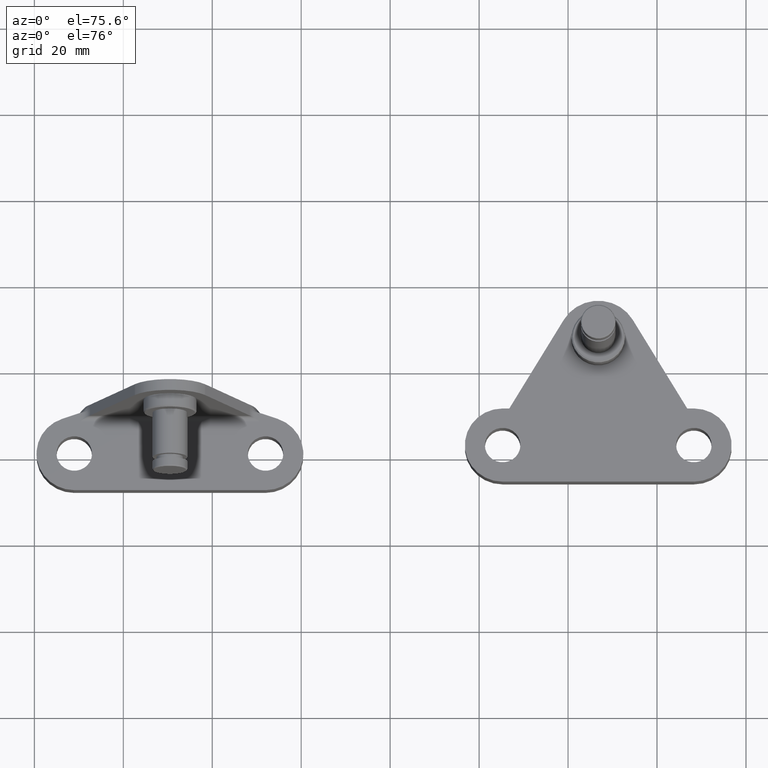
[diagram: clean part render]
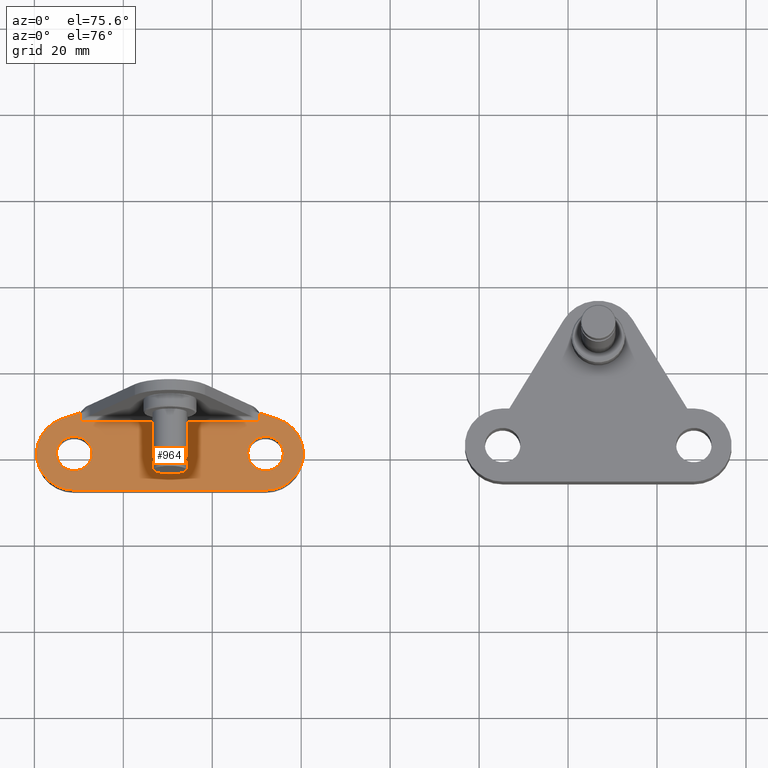
[diagram: same view with one face highlighted and labeled with its STEP entity id]
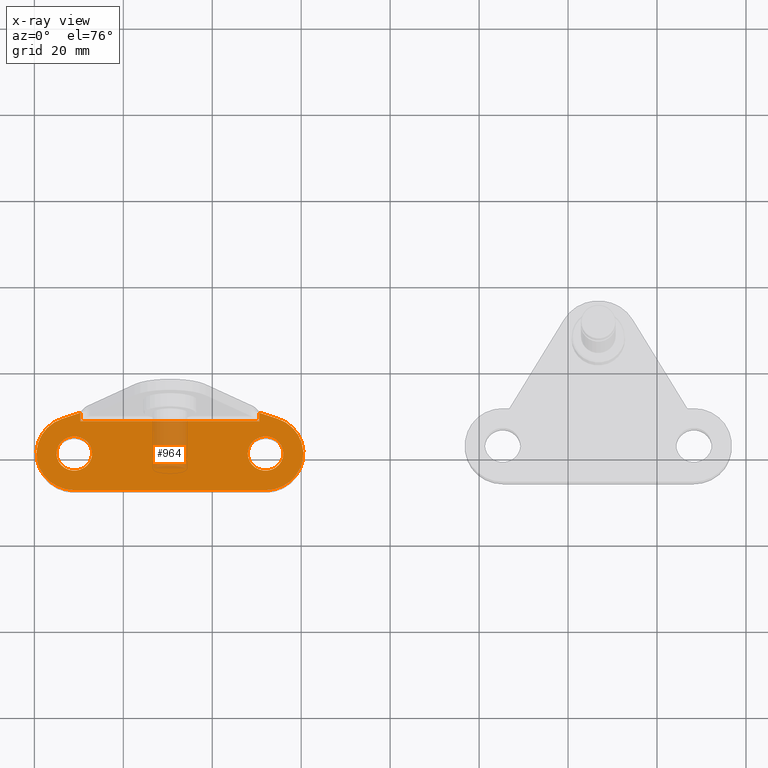
[diagram: x-ray of the same camera — body ghosted, the highlighted face saturated]
A machine part, auxiliary view. The second image highlights one B-rep face of the part: STEP entity #964.
The next image is the same camera in x-ray: the body ghosted, the highlighted face saturated — about 10% of this face is hidden behind the body in this view.
In plain terms, the highlighted planar face has unit normal (0, 0, 1).
Its self-contained STEP definition (entity closure, byte-faithful):
#38=LINE('',#1461,#84);
#45=LINE('',#1519,#91);
#50=LINE('',#1551,#96);
#54=LINE('',#1738,#100);
#56=LINE('',#1857,#102);
#64=LINE('',#1897,#110);
#84=VECTOR('',#1155,40.2647738268237);
#91=VECTOR('',#1178,3.83333333333333);
#96=VECTOR('',#1195,3.66666666666669);
#100=VECTOR('',#1217,1.91937665658249);
#102=VECTOR('',#1237,1.90585205698526);
#110=VECTOR('',#1291,43.);
#158=PLANE('',#1065);
#213=FACE_BOUND('',#353,.T.);
#214=FACE_BOUND('',#354,.T.);
#272=FACE_OUTER_BOUND('',#352,.T.);
#352=EDGE_LOOP('',(#828,#829,#830,#831,#832,#833,#834,#835,#836,#837,#838,
#839,#840));
#353=EDGE_LOOP('',(#841));
#354=EDGE_LOOP('',(#842));
#415=CIRCLE('',#1026,4.);
#421=CIRCLE('',#1034,4.);
#423=CIRCLE('',#1036,5.);
#426=CIRCLE('',#1039,5.);
#428=CIRCLE('',#1043,5.);
#433=CIRCLE('',#1057,4.);
#434=CIRCLE('',#1059,4.);
#435=CIRCLE('',#1061,8.5);
#436=CIRCLE('',#1063,8.5);
#468=VERTEX_POINT('',#1440);
#471=VERTEX_POINT('',#1452);
#485=VERTEX_POINT('',#1516);
#486=VERTEX_POINT('',#1518);
#494=VERTEX_POINT('',#1548);
#495=VERTEX_POINT('',#1550);
#496=VERTEX_POINT('',#1569);
#497=VERTEX_POINT('',#1635);
#498=VERTEX_POINT('',#1637);
#505=VERTEX_POINT('',#1773);
#508=VERTEX_POINT('',#1809);
#515=VERTEX_POINT('',#1883);
#516=VERTEX_POINT('',#1886);
#517=VERTEX_POINT('',#1889);
#518=VERTEX_POINT('',#1893);
#563=EDGE_CURVE('',#471,#468,#38,.T.);
#579=EDGE_CURVE('',#486,#485,#45,.T.);
#590=EDGE_CURVE('',#495,#494,#50,.T.);
#595=EDGE_CURVE('',#497,#498,#415,.T.);
#606=EDGE_CURVE('',#471,#498,#54,.T.);
#607=EDGE_CURVE('',#486,#497,#421,.T.);
#610=EDGE_CURVE('',#505,#496,#423,.T.);
#614=EDGE_CURVE('',#508,#505,#426,.T.);
#617=EDGE_CURVE('',#468,#508,#56,.T.);
#619=EDGE_CURVE('',#496,#494,#428,.T.);
#628=EDGE_CURVE('',#515,#515,#433,.T.);
#629=EDGE_CURVE('',#516,#516,#434,.T.);
#631=EDGE_CURVE('',#485,#517,#435,.T.);
#632=EDGE_CURVE('',#518,#495,#436,.T.);
#634=EDGE_CURVE('',#517,#518,#64,.T.);
#828=ORIENTED_EDGE('',*,*,#606,.T.);
#829=ORIENTED_EDGE('',*,*,#595,.F.);
#830=ORIENTED_EDGE('',*,*,#607,.F.);
#831=ORIENTED_EDGE('',*,*,#579,.T.);
#832=ORIENTED_EDGE('',*,*,#631,.T.);
#833=ORIENTED_EDGE('',*,*,#634,.T.);
#834=ORIENTED_EDGE('',*,*,#632,.T.);
#835=ORIENTED_EDGE('',*,*,#590,.T.);
#836=ORIENTED_EDGE('',*,*,#619,.F.);
#837=ORIENTED_EDGE('',*,*,#610,.F.);
#838=ORIENTED_EDGE('',*,*,#614,.F.);
#839=ORIENTED_EDGE('',*,*,#617,.F.);
#840=ORIENTED_EDGE('',*,*,#563,.F.);
#841=ORIENTED_EDGE('',*,*,#628,.T.);
#842=ORIENTED_EDGE('',*,*,#629,.T.);
#964=ADVANCED_FACE('',(#272,#213,#214),#158,.T.);
#1026=AXIS2_PLACEMENT_3D('',#1638,#1201,#1202);
#1034=AXIS2_PLACEMENT_3D('',#1740,#1220,#1221);
#1036=AXIS2_PLACEMENT_3D('',#1775,#1225,#1226);
#1039=AXIS2_PLACEMENT_3D('',#1811,#1231,#1232);
#1043=AXIS2_PLACEMENT_3D('',#1860,#1241,#1242);
#1057=AXIS2_PLACEMENT_3D('',#1884,#1273,#1274);
#1059=AXIS2_PLACEMENT_3D('',#1887,#1277,#1278);
#1061=AXIS2_PLACEMENT_3D('',#1891,#1282,#1283);
#1063=AXIS2_PLACEMENT_3D('',#1894,#1286,#1287);
#1065=AXIS2_PLACEMENT_3D('',#1898,#1292,#1293);
#1155=DIRECTION('',(1.,1.8396793052573E-16,0.));
#1178=DIRECTION('',(-0.945945945945946,-0.324324324324324,0.));
#1195=DIRECTION('',(-0.945945945945945,0.324324324324327,0.));
#1201=DIRECTION('center_axis',(0.,0.,-1.));
#1202=DIRECTION('ref_axis',(-0.164398987305357,0.986393923832144,0.));
#1217=DIRECTION('',(0.,1.,0.));
#1220=DIRECTION('center_axis',(0.,0.,-1.));
#1221=DIRECTION('ref_axis',(-0.164398987305357,0.986393923832144,0.));
#1225=DIRECTION('center_axis',(0.,0.,-1.));
#1226=DIRECTION('ref_axis',(0.164398987305358,0.986393923832144,0.));
#1231=DIRECTION('center_axis',(0.,0.,-1.));
#1232=DIRECTION('ref_axis',(0.164398987305358,0.986393923832144,0.));
#1237=DIRECTION('',(0.,1.,0.));
#1241=DIRECTION('center_axis',(0.,0.,-1.));
#1242=DIRECTION('ref_axis',(0.164398987305358,0.986393923832144,0.));
#1273=DIRECTION('center_axis',(0.,0.,-1.));
#1274=DIRECTION('ref_axis',(-1.,0.,0.));
#1277=DIRECTION('center_axis',(0.,0.,-1.));
#1278=DIRECTION('ref_axis',(-1.,0.,0.));
#1282=DIRECTION('center_axis',(0.,0.,1.));
#1283=DIRECTION('ref_axis',(0.,1.,0.));
#1286=DIRECTION('center_axis',(0.,0.,1.));
#1287=DIRECTION('ref_axis',(0.,-1.,0.));
#1291=DIRECTION('',(1.,0.,0.));
#1292=DIRECTION('center_axis',(0.,0.,1.));
#1293=DIRECTION('ref_axis',(1.,0.,0.));
#1440=CARTESIAN_POINT('',(50.1323869134118,7.5,2.5));
#1452=CARTESIAN_POINT('',(9.86761308658817,7.5,2.5));
#1461=CARTESIAN_POINT('',(30.1572972807667,7.5,2.5));
#1516=CARTESIAN_POINT('',(5.74324324324324,8.04054054054054,2.5));
#1518=CARTESIAN_POINT('',(9.36936936936937,9.28378378378378,2.5));
#1519=CARTESIAN_POINT('',(10.,9.5,2.5));
#1548=CARTESIAN_POINT('',(50.7882882882883,9.22972972972974,2.5));
#1550=CARTESIAN_POINT('',(54.2567567567568,8.04054054054053,2.5));
#1551=CARTESIAN_POINT('',(54.2567567567568,8.04054054054053,2.5));
#1569=CARTESIAN_POINT('',(50.646219761291,9.27607816520914,2.50000000000073));
#1635=CARTESIAN_POINT('',(9.40419440738534,9.29554525655341,2.5));
#1637=CARTESIAN_POINT('',(9.86761308658818,9.41937665658249,2.5));
#1638=CARTESIAN_POINT('Origin',(10.6666666666667,5.5,2.5));
#1738=CARTESIAN_POINT('',(9.86761308658817,0.141789203926244,2.5));
#1740=CARTESIAN_POINT('Origin',(10.6666666666667,5.5,2.5));
#1773=CARTESIAN_POINT('',(50.1416051904845,9.40402843331643,2.5));
#1775=CARTESIAN_POINT('Origin',(49.1666666666667,4.50000000000001,2.5));
#1809=CARTESIAN_POINT('',(50.1323869134118,9.40585205698527,2.5));
#1811=CARTESIAN_POINT('Origin',(49.1666666666667,4.50000000000001,2.5));
#1857=CARTESIAN_POINT('',(50.1323869134118,11.,2.5));
#1860=CARTESIAN_POINT('Origin',(49.1666666666667,4.50000000000001,2.5));
#1883=CARTESIAN_POINT('',(55.5,4.89858719658941E-16,2.5));
#1884=CARTESIAN_POINT('Origin',(51.5,0.,2.5));
#1886=CARTESIAN_POINT('',(12.5,4.89858719658941E-16,2.5));
#1887=CARTESIAN_POINT('Origin',(8.5,0.,2.5));
#1889=CARTESIAN_POINT('',(8.50000000000001,-8.5,2.5));
#1891=CARTESIAN_POINT('Origin',(8.5,0.,2.5));
#1893=CARTESIAN_POINT('',(51.5,-8.5,2.5));
#1894=CARTESIAN_POINT('Origin',(51.5,0.,2.5));
#1897=CARTESIAN_POINT('',(8.5,-8.5,2.5));
#1898=CARTESIAN_POINT('Origin',(30.3145945615333,0.141789203926244,2.5));